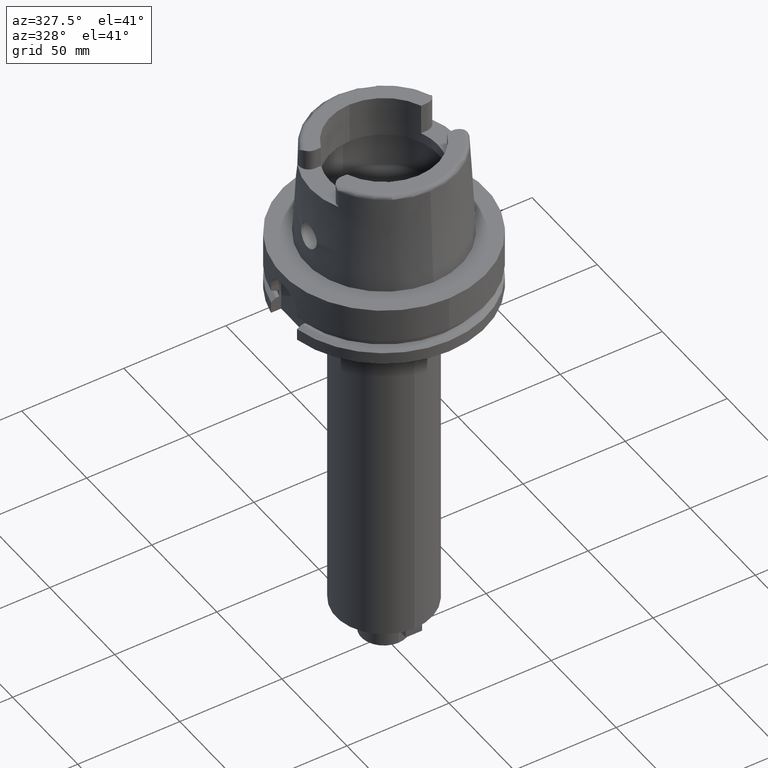
[diagram: clean part render]
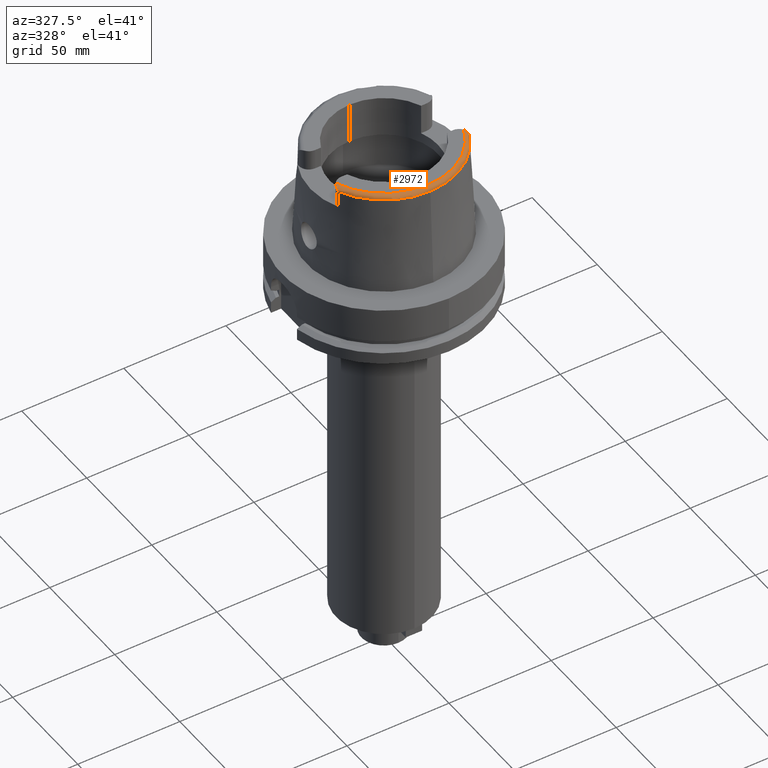
[diagram: same view with one face highlighted and labeled with its STEP entity id]
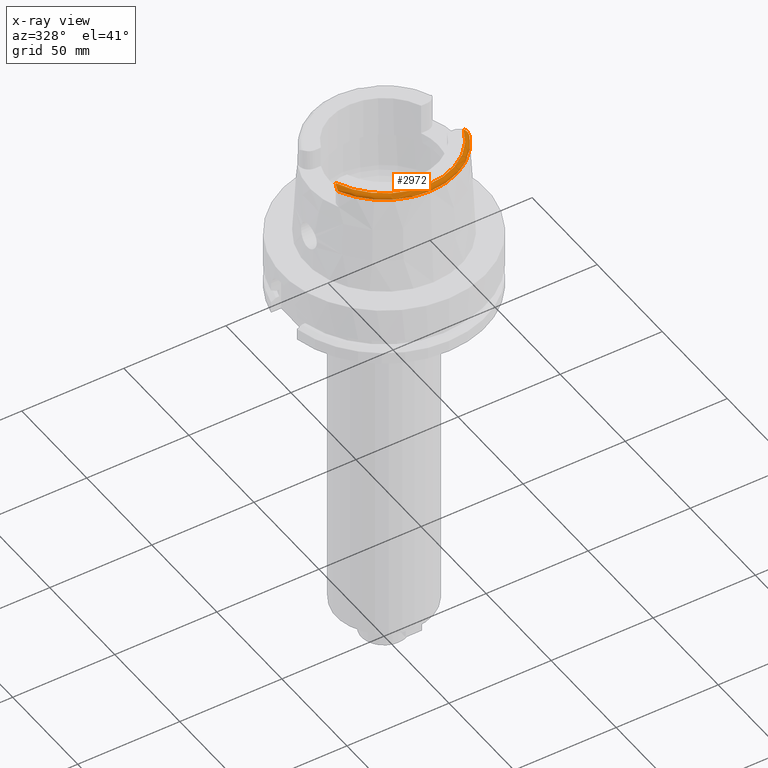
[diagram: x-ray of the same camera — body ghosted, the highlighted face saturated]
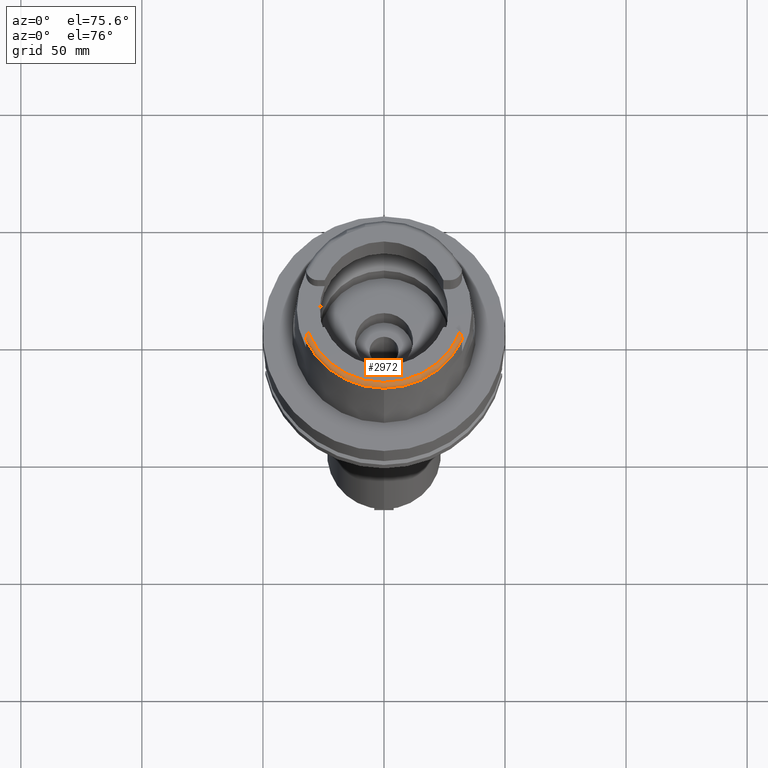
[diagram: same view with one face highlighted and labeled with its STEP entity id]
A machine part, auxiliary view. The second image highlights one B-rep face of the part: STEP entity #2972.
The next image is the same camera in x-ray: the body ghosted, the highlighted face saturated — about 0% of this face is hidden behind the body in this view.
A second angle (auxiliary view) of the same face is appended — the face is thin or edge-on in the first view.
In plain terms, the highlighted toroidal blend (fillet) surface has major radius 33.5974 mm and minor (blend) radius 2 mm.
Its self-contained STEP definition (entity closure, byte-faithful):
#199=CARTESIAN_POINT('',(0.E0,0.E0,5.E1));
#200=DIRECTION('',(0.E0,0.E0,-1.E0));
#201=DIRECTION('',(9.332215253018E-1,-3.593015233942E-1,0.E0));
#202=AXIS2_PLACEMENT_3D('',#199,#200,#201);
#221=CARTESIAN_POINT('',(-3.224999491821E1,-1.506448478825E1,4.809973279361E1));
#222=CARTESIAN_POINT('',(-3.224999491821E1,-1.505848808190E1,4.815048946915E1));
#223=CARTESIAN_POINT('',(-3.225000237150E1,-1.503758751324E1,4.825082234395E1));
#224=CARTESIAN_POINT('',(-3.224999932243E1,-1.497881317532E1,4.840102064506E1));
#225=CARTESIAN_POINT('',(-3.225E1,-1.492248844450E1,4.849800875604E1));
#226=CARTESIAN_POINT('',(-3.225E1,-1.489E1,4.854599893822E1));
#231=CARTESIAN_POINT('',(-3.225E1,-1.489E1,4.854599893822E1));
#232=CARTESIAN_POINT('',(-3.225E1,-1.483556258539E1,4.862641095809E1));
#233=CARTESIAN_POINT('',(-3.224825734563E1,-1.470531114924E1,4.878590018940E1));
#234=CARTESIAN_POINT('',(-3.223268086959E1,-1.444724077032E1,4.902511358391E1));
#235=CARTESIAN_POINT('',(-3.219521376067E1,-1.413439065212E1,4.925886486869E1));
#236=CARTESIAN_POINT('',(-3.212433085881E1,-1.376440350785E1,4.948695300633E1));
#237=CARTESIAN_POINT('',(-3.200430974829E1,-1.333715189457E1,4.970025487232E1));
#238=CARTESIAN_POINT('',(-3.182669150718E1,-1.288073878102E1,4.987316788505E1));
#239=CARTESIAN_POINT('',(-3.159759207990E1,-1.243691128975E1,4.997962098443E1));
#240=CARTESIAN_POINT('',(-3.143622611206E1,-1.218804736154E1,5.E1));
#241=CARTESIAN_POINT('',(-3.135385269248E1,-1.207161079257E1,5.E1));
#246=CARTESIAN_POINT('',(3.135385269248E1,-1.207161079257E1,5.E1));
#247=CARTESIAN_POINT('',(3.143618009448E1,-1.218798231472E1,5.E1));
#248=CARTESIAN_POINT('',(3.159754762808E1,-1.243683451951E1,4.997963471451E1));
#249=CARTESIAN_POINT('',(3.182683606300E1,-1.288096649494E1,4.987314288096E1));
#250=CARTESIAN_POINT('',(3.200469451078E1,-1.333835359585E1,4.969970789556E1));
#251=CARTESIAN_POINT('',(3.212419963130E1,-1.376397914049E1,4.948715090962E1));
#252=CARTESIAN_POINT('',(3.219524934772E1,-1.413444925683E1,4.925886239045E1));
#253=CARTESIAN_POINT('',(3.223277289317E1,-1.444808048205E1,4.902448610229E1));
#254=CARTESIAN_POINT('',(3.224830817620E1,-1.470678538245E1,4.878436067565E1));
#255=CARTESIAN_POINT('',(3.225E1,-1.483607262780E1,4.862565755090E1));
#256=CARTESIAN_POINT('',(3.225E1,-1.489E1,4.854599893822E1));
#261=CARTESIAN_POINT('',(3.225E1,-1.489E1,4.854599893822E1));
#262=CARTESIAN_POINT('',(3.225E1,-1.492382669772E1,4.849603196038E1));
#263=CARTESIAN_POINT('',(3.225000073602E1,-1.498138416233E1,4.839603845526E1));
#264=CARTESIAN_POINT('',(3.224999742392E1,-1.503923177082E1,4.824499331097E1));
#265=CARTESIAN_POINT('',(3.225000552017E1,-1.505876225730E1,4.814774558283E1));
#266=CARTESIAN_POINT('',(3.225000552017E1,-1.506439835465E1,4.810004113516E1));
#271=CARTESIAN_POINT('',(0.E0,0.E0,4.809987853799E1));
#272=DIRECTION('',(0.E0,0.E0,-1.E0));
#273=DIRECTION('',(9.060280460805E-1,-4.232176505246E-1,0.E0));
#274=AXIS2_PLACEMENT_3D('',#271,#272,#273);
#279=CARTESIAN_POINT('',(0.E0,0.E0,4.809987853799E1));
#280=DIRECTION('',(0.E0,0.E0,-1.E0));
#281=DIRECTION('',(0.E0,-1.E0,0.E0));
#282=AXIS2_PLACEMENT_3D('',#279,#280,#281);
#2454=CARTESIAN_POINT('',(-3.135385269249E1,-1.207161079257E1,5.E1));
#2456=VERTEX_POINT('',#2454);
#2466=CARTESIAN_POINT('',(3.135385269249E1,-1.207161079257E1,5.E1));
#2467=VERTEX_POINT('',#2466);
#2490=VERTEX_POINT('',#231);
#2497=VERTEX_POINT('',#221);
#2498=VERTEX_POINT('',#256);
#2499=VERTEX_POINT('',#266);
#2500=CARTESIAN_POINT('',(1.065814103640E-14,-3.559494289391E1,
4.809987853799E1));
#2501=VERTEX_POINT('',#2500);
#2953=CARTESIAN_POINT('',(0.E0,0.E0,4.8E1));
#2954=DIRECTION('',(0.E0,0.E0,1.E0));
#2955=DIRECTION('',(-4.184165975220E-4,-9.999999124638E-1,0.E0));
#2956=AXIS2_PLACEMENT_3D('',#2953,#2954,#2955);
#2957=TOROIDAL_SURFACE('',#2956,3.359743838136E1,2.E0);
#2959=ORIENTED_EDGE('',*,*,#2958,.T.);
#2960=ORIENTED_EDGE('',*,*,#2944,.T.);
#2961=ORIENTED_EDGE('',*,*,#2933,.F.);
#2963=ORIENTED_EDGE('',*,*,#2962,.T.);
#2965=ORIENTED_EDGE('',*,*,#2964,.T.);
#2967=ORIENTED_EDGE('',*,*,#2966,.T.);
#2969=ORIENTED_EDGE('',*,*,#2968,.T.);
#2970=EDGE_LOOP('',(#2959,#2960,#2961,#2963,#2965,#2967,#2969));
#2971=FACE_OUTER_BOUND('',#2970,.F.);
#203=CIRCLE('',#202,3.359743838136E1);
#227=B_SPLINE_CURVE_WITH_KNOTS('',3,(#221,#222,#223,#224,#225,#226),
.UNSPECIFIED.,.F.,.F.,(4,1,1,4),(0.E0,3.333333333333E-1,6.666666666667E-1,1.E0),
.UNSPECIFIED.);
#242=B_SPLINE_CURVE_WITH_KNOTS('',3,(#231,#232,#233,#234,#235,#236,#237,#238,
#239,#240,#241),.UNSPECIFIED.,.F.,.F.,(4,1,1,1,1,1,1,1,4),(0.E0,1.25E-1,2.5E-1,
3.75E-1,5.E-1,6.25E-1,7.5E-1,8.75E-1,1.E0),.UNSPECIFIED.);
#257=B_SPLINE_CURVE_WITH_KNOTS('',3,(#246,#247,#248,#249,#250,#251,#252,#253,
#254,#255,#256),.UNSPECIFIED.,.F.,.F.,(4,1,1,1,1,1,1,1,4),(0.E0,1.25E-1,2.5E-1,
3.75E-1,5.E-1,6.25E-1,7.5E-1,8.75E-1,1.E0),.UNSPECIFIED.);
#267=B_SPLINE_CURVE_WITH_KNOTS('',3,(#261,#262,#263,#264,#265,#266),
.UNSPECIFIED.,.F.,.F.,(4,1,1,4),(0.E0,3.333333333333E-1,6.666666666667E-1,1.E0),
.UNSPECIFIED.);
#275=CIRCLE('',#274,3.559494289391E1);
#283=CIRCLE('',#282,3.559494289391E1);
#2933=EDGE_CURVE('',#2467,#2456,#203,.T.);
#2944=EDGE_CURVE('',#2490,#2456,#242,.T.);
#2958=EDGE_CURVE('',#2497,#2490,#227,.T.);
#2962=EDGE_CURVE('',#2467,#2498,#257,.T.);
#2964=EDGE_CURVE('',#2498,#2499,#267,.T.);
#2966=EDGE_CURVE('',#2499,#2501,#275,.T.);
#2968=EDGE_CURVE('',#2501,#2497,#283,.T.);
#2972=ADVANCED_FACE('',(#2971),#2957,.T.);